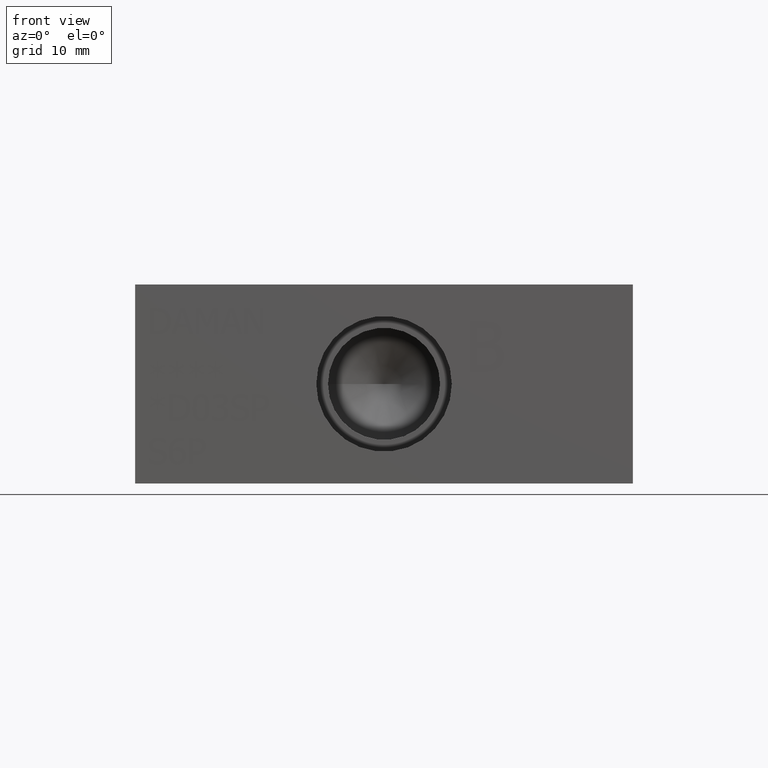
[diagram: clean part render]
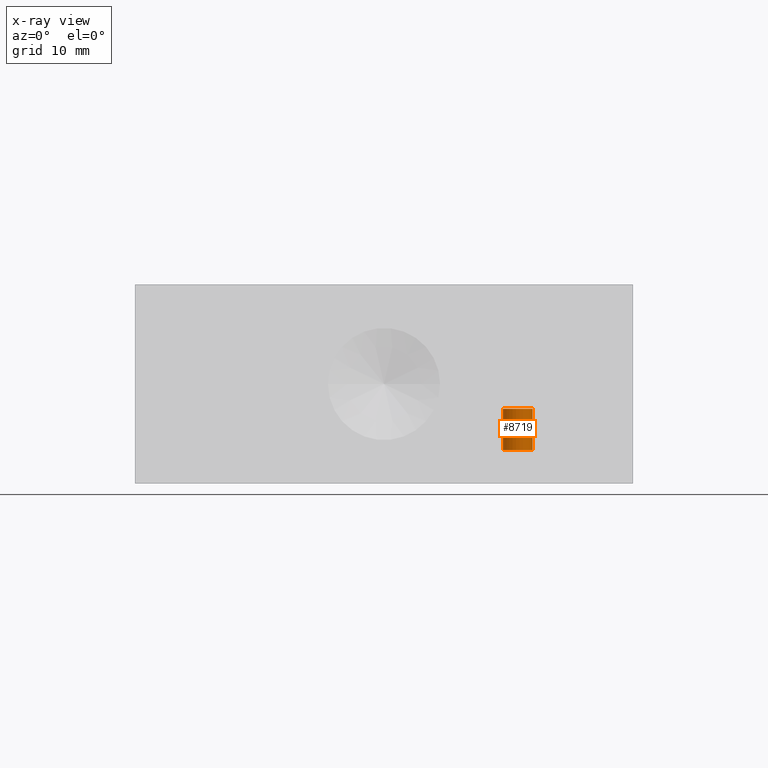
[diagram: x-ray — body ghosted, one internal face saturated and labeled with its STEP entity id]
A machine part, front view, then the same camera in x-ray: the body is ghosted and one INTERNAL B-rep face — a face not visible from any outside direction — is saturated and labeled: STEP entity #8719.
In plain terms, the highlighted cylindrical surface (bore or boss wall) has radius 1.8923 mm, axis along (0, 0, 1).
Its self-contained STEP definition (entity closure, byte-faithful):
#45=CYLINDRICAL_SURFACE('',#9106,1.8923);
#112=CIRCLE('',#9097,1.8923);
#113=CIRCLE('',#9098,1.8923);
#116=CIRCLE('',#9102,1.8923);
#892=FACE_OUTER_BOUND('',#1377,.T.);
#1377=EDGE_LOOP('',(#7661,#7662,#7663,#7664,#7665));
#2242=LINE('',#14929,#3082);
#3082=VECTOR('',#10686,1.8923);
#4151=VERTEX_POINT('',#14909);
#4152=VERTEX_POINT('',#14910);
#4156=VERTEX_POINT('',#14920);
#5341=EDGE_CURVE('',#4151,#4152,#112,.T.);
#5343=EDGE_CURVE('',#4152,#4151,#113,.T.);
#5346=EDGE_CURVE('',#4156,#4156,#116,.T.);
#5350=EDGE_CURVE('',#4156,#4152,#2242,.T.);
#7661=ORIENTED_EDGE('',*,*,#5346,.T.);
#7662=ORIENTED_EDGE('',*,*,#5350,.T.);
#7663=ORIENTED_EDGE('',*,*,#5341,.F.);
#7664=ORIENTED_EDGE('',*,*,#5343,.F.);
#7665=ORIENTED_EDGE('',*,*,#5350,.F.);
#8719=ADVANCED_FACE('',(#892),#45,.F.);
#9097=AXIS2_PLACEMENT_3D('',#14911,#10664,#10665);
#9098=AXIS2_PLACEMENT_3D('',#14914,#10667,#10668);
#9102=AXIS2_PLACEMENT_3D('',#14921,#10675,#10676);
#9106=AXIS2_PLACEMENT_3D('',#14928,#10684,#10685);
#10664=DIRECTION('center_axis',(0.,0.,1.));
#10665=DIRECTION('ref_axis',(1.,0.,0.));
#10667=DIRECTION('center_axis',(0.,0.,1.));
#10668=DIRECTION('ref_axis',(1.,0.,0.));
#10675=DIRECTION('center_axis',(0.,0.,1.));
#10676=DIRECTION('ref_axis',(1.,0.,0.));
#10684=DIRECTION('center_axis',(0.,0.,1.));
#10685=DIRECTION('ref_axis',(1.,0.,0.));
#10686=DIRECTION('',(0.,0.,-1.));
#14909=CARTESIAN_POINT('',(50.7111,11.0998,4.26752));
#14910=CARTESIAN_POINT('',(46.9265,11.0998,4.26752));
#14911=CARTESIAN_POINT('Origin',(48.8188,11.0998,4.26752));
#14914=CARTESIAN_POINT('Origin',(48.8188,11.0998,4.26752));
#14920=CARTESIAN_POINT('',(46.9265,11.0998,9.525));
#14921=CARTESIAN_POINT('Origin',(48.8188,11.0998,9.525));
#14928=CARTESIAN_POINT('Origin',(48.8188,11.0998,14.83376));
#14929=CARTESIAN_POINT('',(46.9265,11.0998,14.83376));